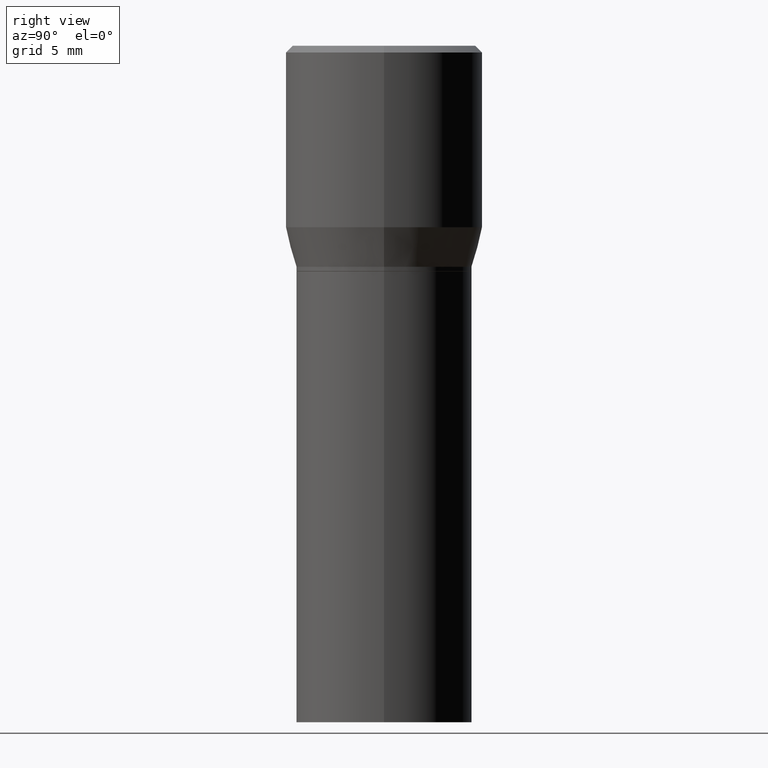
[diagram: clean part render]
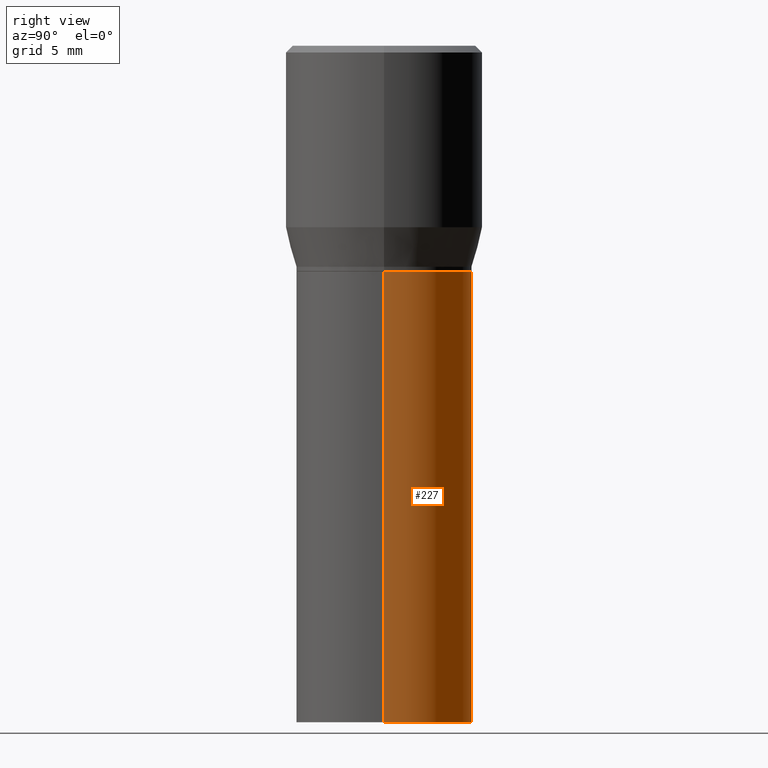
[diagram: same view with one face highlighted and labeled with its STEP entity id]
A machine part, right view. The second image highlights one B-rep face of the part: STEP entity #227.
In plain terms, the highlighted cylindrical surface (partial cylindrical patch) has radius 4.9606 mm, axis along (-0, 0, 1).
Its self-contained STEP definition (entity closure, byte-faithful):
#1 = EDGE_CURVE ( 'NONE', #431, #134, #230, .T. ) ;
#11 = CARTESIAN_POINT ( 'NONE',  ( 0.000000000000000000, 0.000000000000000000, 0.000000000000000000 ) ) ;
#20 = CARTESIAN_POINT ( 'NONE',  ( 0.1953000000000000014, -3.109513280373700880E-15, -0.5000000000000001110 ) ) ;
#41 = CARTESIAN_POINT ( 'NONE',  ( 1.222734403092568719E-29, -1.745740669421573186E-15, -0.5000000000000001110 ) ) ;
#46 = DIRECTION ( 'NONE',  ( -2.445468806185136597E-29, 3.491481338843145583E-15, 1.000000000000000000 ) ) ;
#57 = EDGE_LOOP ( 'NONE', ( #354, #404, #79, #301 ) ) ;
#61 = DIRECTION ( 'NONE',  ( -2.445468806185136877E-29, 3.491481338843145188E-15, 1.000000000000000000 ) ) ;
#79 = ORIENTED_EDGE ( 'NONE', *, *, #322, .F. ) ;
#93 = LINE ( 'NONE', #336, #440 ) ;
#128 = CARTESIAN_POINT ( 'NONE',  ( 3.668203209277704895E-29, -5.237222008264718177E-15, -1.500000000000000222 ) ) ;
#134 = VERTEX_POINT ( 'NONE', #240 ) ;
#139 = AXIS2_PLACEMENT_3D ( 'NONE', #128, #378, #188 ) ;
#188 = DIRECTION ( 'NONE',  ( 1.000000000000000000, -6.982962677686269077E-15, 0.000000000000000000 ) ) ;
#192 = CIRCLE ( 'NONE', #222, 0.1953000000000000014 ) ;
#196 = CARTESIAN_POINT ( 'NONE',  ( -0.1953000000000000014, -2.103791375903670501E-15, -0.5000000000000001110 ) ) ;
#222 = AXIS2_PLACEMENT_3D ( 'NONE', #41, #46, #284 ) ;
#227 = ADVANCED_FACE ( 'NONE', ( #332 ), #443, .T. ) ;
#230 = CIRCLE ( 'NONE', #139, 0.1953000000000000014 ) ;
#240 = CARTESIAN_POINT ( 'NONE',  ( -0.1953000000000000014, -2.103791375903670501E-15, -1.500000000000000222 ) ) ;
#253 = EDGE_CURVE ( 'NONE', #431, #285, #93, .T. ) ;
#257 = DIRECTION ( 'NONE',  ( -2.445468806185136877E-29, 3.491481338843145188E-15, 1.000000000000000000 ) ) ;
#270 = VERTEX_POINT ( 'NONE', #196 ) ;
#284 = DIRECTION ( 'NONE',  ( 1.000000000000000000, -6.982962677686264344E-15, 0.000000000000000000 ) ) ;
#285 = VERTEX_POINT ( 'NONE', #20 ) ;
#289 = VECTOR ( 'NONE', #257, 39.37007874015748143 ) ;
#293 = DIRECTION ( 'NONE',  ( -2.445468806185136597E-29, 3.491481338843145583E-15, 1.000000000000000000 ) ) ;
#301 = ORIENTED_EDGE ( 'NONE', *, *, #253, .F. ) ;
#322 = EDGE_CURVE ( 'NONE', #285, #270, #192, .T. ) ;
#326 = CARTESIAN_POINT ( 'NONE',  ( 0.1953000000000000014, -6.600994619216846463E-15, -1.500000000000000222 ) ) ;
#332 = FACE_OUTER_BOUND ( 'NONE', #57, .T. ) ;
#336 = CARTESIAN_POINT ( 'NONE',  ( 0.1953000000000000014, -1.363772610952127695E-15, 9.523173243129462177E-30 ) ) ;
#341 = DIRECTION ( 'NONE',  ( 1.000000000000000000, -6.982962677686265922E-15, 4.876176775795935793E-29 ) ) ;
#354 = ORIENTED_EDGE ( 'NONE', *, *, #1, .T. ) ;
#362 = EDGE_CURVE ( 'NONE', #134, #270, #438, .T. ) ;
#378 = DIRECTION ( 'NONE',  ( -2.445468806185136597E-29, 3.491481338843145583E-15, 1.000000000000000000 ) ) ;
#404 = ORIENTED_EDGE ( 'NONE', *, *, #362, .T. ) ;
#431 = VERTEX_POINT ( 'NONE', #326 ) ;
#435 = CARTESIAN_POINT ( 'NONE',  ( -0.1953000000000000014, 1.387689962939475673E-15, -9.606680231267831797E-30 ) ) ;
#438 = LINE ( 'NONE', #435, #289 ) ;
#440 = VECTOR ( 'NONE', #61, 39.37007874015748143 ) ;
#443 = CYLINDRICAL_SURFACE ( 'NONE', #447, 0.1953000000000000014 ) ;
#447 = AXIS2_PLACEMENT_3D ( 'NONE', #11, #293, #341 ) ;